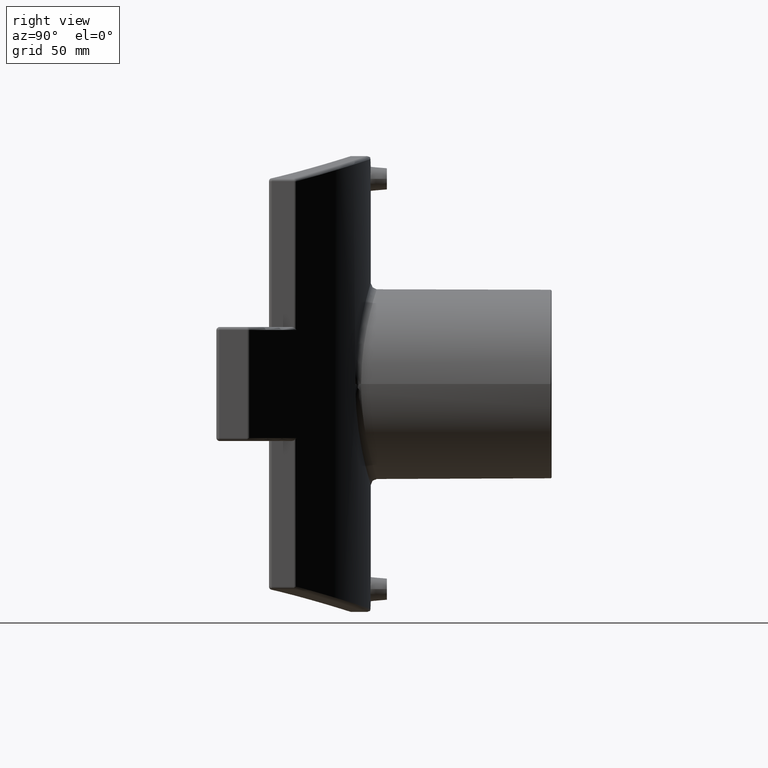
[diagram: clean part render]
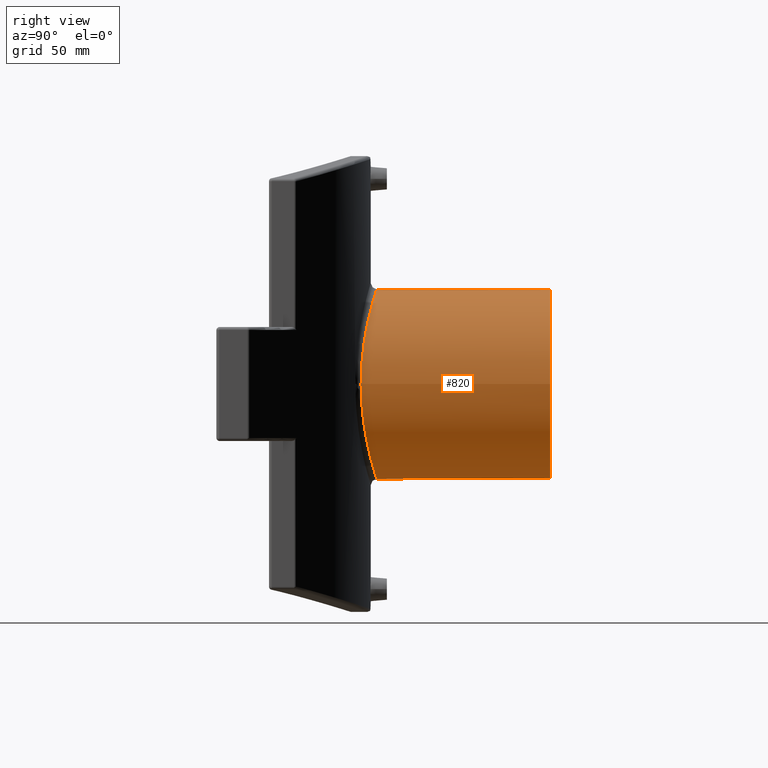
[diagram: same view with one face highlighted and labeled with its STEP entity id]
A machine part, right view. The second image highlights one B-rep face of the part: STEP entity #820.
In plain terms, the highlighted cylindrical surface (bore or boss wall) has radius 62.5 mm, axis along (0, -1, 0).
Its self-contained STEP definition (entity closure, byte-faithful):
#95=B_SPLINE_CURVE_WITH_KNOTS('',3,(#1370,#1371,#1372,#1373,#1374,#1375,
#1376,#1377,#1378,#1379,#1380,#1381,#1382,#1383,#1384,#1385,#1386,#1387,
#1388,#1389,#1390,#1391,#1392,#1393,#1394),.UNSPECIFIED.,.T.,.F.,(4,1,1,
1,1,1,1,1,1,1,1,1,1,1,1,1,1,1,1,1,1,1,4),(-5.62016446944895E-19,1.35378310367775,
2.70756620735549,5.41513241471099,7.22017655294798,9.02522069118498,10.830264829422,
12.635308967659,14.440353105896,16.245397244133,18.05044138237,19.855485520607,
21.6605296588439,25.2706179353179,25.7218789698772,26.1731400044364,27.0756620735549,
28.8807062117919,30.6857503500289,32.4907944882659,35.1983606956214,36.5521437992992,
37.9059269029769),.UNSPECIFIED.);
#116=CYLINDRICAL_SURFACE('',#892,62.5);
#160=FACE_BOUND('',#254,.T.);
#183=FACE_OUTER_BOUND('',#253,.T.);
#253=EDGE_LOOP('',(#590));
#254=EDGE_LOOP('',(#591));
#337=CIRCLE('',#891,62.5);
#401=VERTEX_POINT('',#1366);
#402=VERTEX_POINT('',#1369);
#472=EDGE_CURVE('',#401,#401,#337,.T.);
#473=EDGE_CURVE('',#402,#402,#95,.T.);
#590=ORIENTED_EDGE('',*,*,#473,.F.);
#591=ORIENTED_EDGE('',*,*,#472,.F.);
#820=ADVANCED_FACE('',(#183,#160),#116,.T.);
#891=AXIS2_PLACEMENT_3D('',#1367,#1024,#1025);
#892=AXIS2_PLACEMENT_3D('',#1368,#1026,#1027);
#1024=DIRECTION('center_axis',(0.,1.,0.));
#1025=DIRECTION('ref_axis',(1.,0.,0.));
#1026=DIRECTION('center_axis',(0.,-1.,0.));
#1027=DIRECTION('ref_axis',(1.,0.,0.));
#1366=CARTESIAN_POINT('',(-62.5,333.2,7.65404249467096E-15));
#1367=CARTESIAN_POINT('Origin',(0.,333.2,0.));
#1368=CARTESIAN_POINT('Origin',(0.,334.,0.));
#1369=CARTESIAN_POINT('',(62.5,208.659411481965,-1.11022302462516E-15));
#1370=CARTESIAN_POINT('Ctrl Pts',(62.5005017243642,208.659027488405,-1.06448465471112E-5));
#1371=CARTESIAN_POINT('Ctrl Pts',(62.5004900838965,208.659027941502,4.70214017080073));
#1372=CARTESIAN_POINT('Ctrl Pts',(61.4302958879983,209.027160344457,14.1065424360056));
#1373=CARTESIAN_POINT('Ctrl Pts',(55.1798392015909,211.056001144984,31.887116364687));
#1374=CARTESIAN_POINT('Ctrl Pts',(42.3134265647075,214.645055779009,47.9828135649314));
#1375=CARTESIAN_POINT('Ctrl Pts',(23.2898638662203,217.867369216542,59.0087049819486));
#1376=CARTESIAN_POINT('Ctrl Pts',(4.7795263242478,219.254822665627,63.2759314354836));
#1377=CARTESIAN_POINT('Ctrl Pts',(-14.2122141377083,218.777391251945,61.8367000338863));
#1378=CARTESIAN_POINT('Ctrl Pts',(-31.8099557481871,216.607091276183,54.8813490967163));
#1379=CARTESIAN_POINT('Ctrl Pts',(-46.4877085914358,213.492252422918,43.1473607554274));
#1380=CARTESIAN_POINT('Ctrl Pts',(-57.1020995437306,210.465643284529,27.6292448697553));
#1381=CARTESIAN_POINT('Ctrl Pts',(-62.7369146998495,208.581893857276,9.5231142031221));
#1382=CARTESIAN_POINT('Ctrl Pts',(-62.7281365665631,208.582284641986,-9.52104784111975));
#1383=CARTESIAN_POINT('Ctrl Pts',(-55.2419438736339,211.094465015018,-33.6758084696135));
#1384=CARTESIAN_POINT('Ctrl Pts',(-40.9944556841146,214.987683930092,-49.0445617810285));
#1385=CARTESIAN_POINT('Ctrl Pts',(-27.2272621741558,217.090623479522,-56.3201308660416));
#1386=CARTESIAN_POINT('Ctrl Pts',(-21.517862261223,217.838334738161,-58.8249354890853));
#1387=CARTESIAN_POINT('Ctrl Pts',(-11.0459411054683,218.855854905698,-62.0746112018405));
#1388=CARTESIAN_POINT('Ctrl Pts',(4.77742640735741,219.255432483539,-63.2770109836315));
#1389=CARTESIAN_POINT('Ctrl Pts',(23.2895783899592,217.867220973321,-59.0086086915226));
#1390=CARTESIAN_POINT('Ctrl Pts',(42.3130502590015,214.645288433857,-47.9832720085454));
#1391=CARTESIAN_POINT('Ctrl Pts',(55.1795944937075,211.05601386711,-31.8876011267822));
#1392=CARTESIAN_POINT('Ctrl Pts',(61.4303657308042,209.027157625876,-14.1063624578781));
#1393=CARTESIAN_POINT('Ctrl Pts',(62.5005133648318,208.659027035308,-4.70216146049381));
#1394=CARTESIAN_POINT('Ctrl Pts',(62.5005017243642,208.659027488405,-1.06448465471112E-5));